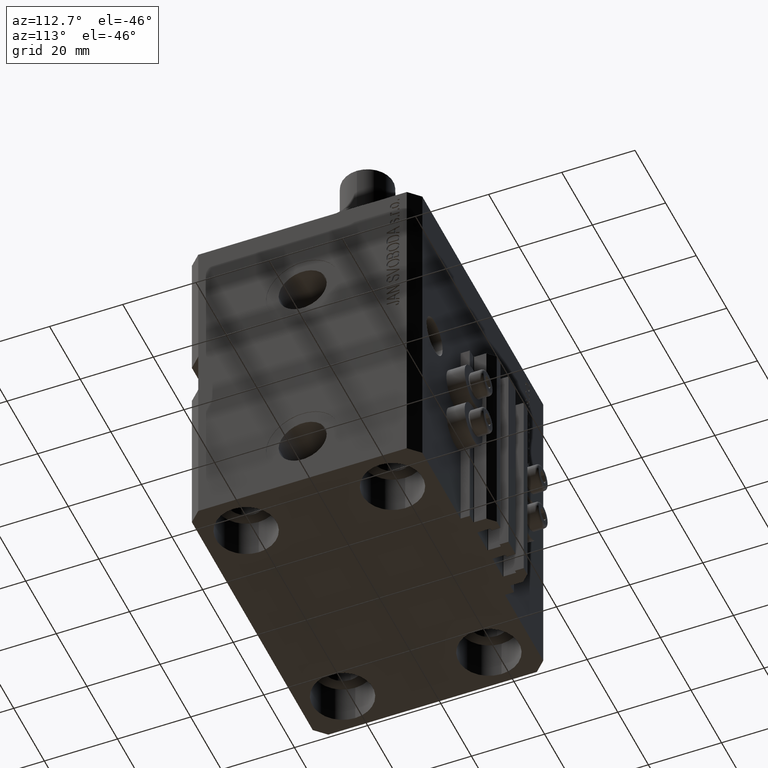
[diagram: clean part render]
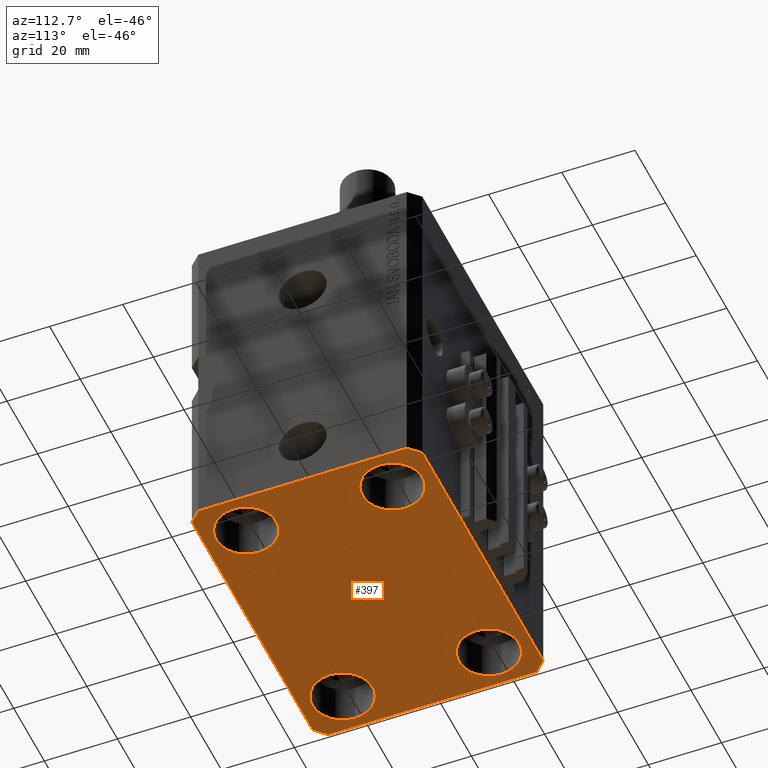
[diagram: same view with one face highlighted and labeled with its STEP entity id]
A machine part, auxiliary view. The second image highlights one B-rep face of the part: STEP entity #397.
In plain terms, the highlighted planar face has unit normal (0, 0, 1).
Its self-contained STEP definition (entity closure, byte-faithful):
#308 = CARTESIAN_POINT ( 'NONE',  ( -31.50000000000000000, -20.00000000000000000, -93.00000000000000000 ) ) ;
#341 = CARTESIAN_POINT ( 'NONE',  ( -39.50000000000000711, -31.50000000000000000, -93.00000000000000000 ) ) ;
#366 = CARTESIAN_POINT ( 'NONE',  ( 39.50000000000056843, 31.50000000000000000, -93.00000000000000000 ) ) ;
#397 = ADVANCED_FACE ( 'NONE', ( #9981, #2274, #21641, #6262, #14430 ), #17423, .F. ) ;
#473 = CARTESIAN_POINT ( 'NONE',  ( -39.75000000000000000, -20.00000000000000000, -93.00000000000000000 ) ) ;
#772 = ORIENTED_EDGE ( 'NONE', *, *, #30336, .T. ) ;
#888 = DIRECTION ( 'NONE',  ( 1.000000000000000000, 0.000000000000000000, 0.000000000000000000 ) ) ;
#1151 = CARTESIAN_POINT ( 'NONE',  ( -39.50000000000000711, 31.50000000000000000, -93.00000000000000000 ) ) ;
#1589 = ORIENTED_EDGE ( 'NONE', *, *, #12953, .T. ) ;
#1649 = VERTEX_POINT ( 'NONE', #39959 ) ;
#1673 = DIRECTION ( 'NONE',  ( 0.000000000000000000, -1.000000000000000000, 0.000000000000000000 ) ) ;
#2274 = FACE_BOUND ( 'NONE', #24689, .T. ) ;
#2641 = EDGE_CURVE ( 'NONE', #32670, #44486, #13923, .T. ) ;
#2799 = AXIS2_PLACEMENT_3D ( 'NONE', #17500, #13526, #32687 ) ;
#3371 = ORIENTED_EDGE ( 'NONE', *, *, #2641, .F. ) ;
#3550 = DIRECTION ( 'NONE',  ( 1.000000000000000000, 0.000000000000000000, 0.000000000000000000 ) ) ;
#3605 = DIRECTION ( 'NONE',  ( 0.7071067811865471286, -0.7071067811865479058, 0.000000000000000000 ) ) ;
#3819 = CARTESIAN_POINT ( 'NONE',  ( -23.25000000000000000, 20.00000000000000000, -93.00000000000000000 ) ) ;
#4004 = CARTESIAN_POINT ( 'NONE',  ( -42.50000000000000000, 28.50000000000000000, -93.00000000000000000 ) ) ;
#4154 = CIRCLE ( 'NONE', #28750, 8.250000000000000000 ) ;
#4473 = CIRCLE ( 'NONE', #44185, 8.249999999999992895 ) ;
#4543 = CIRCLE ( 'NONE', #10110, 8.250000000000000000 ) ;
#4635 = CARTESIAN_POINT ( 'NONE',  ( 31.50000000000000000, 20.00000000000001066, -93.00000000000000000 ) ) ;
#4725 = CARTESIAN_POINT ( 'NONE',  ( 39.74999999999999289, -20.00000000000000000, -93.00000000000000000 ) ) ;
#5233 = EDGE_CURVE ( 'NONE', #44486, #42988, #12548, .T. ) ;
#5979 = CARTESIAN_POINT ( 'NONE',  ( -39.75000000000000000, 20.00000000000000000, -93.00000000000000000 ) ) ;
#5986 = CARTESIAN_POINT ( 'NONE',  ( -39.50000000000000711, -31.50000000000000000, -93.00000000000000000 ) ) ;
#6262 = FACE_BOUND ( 'NONE', #6630, .T. ) ;
#6630 = EDGE_LOOP ( 'NONE', ( #772, #1589 ) ) ;
#6784 = CIRCLE ( 'NONE', #9926, 8.249999999999992895 ) ;
#7747 = LINE ( 'NONE', #22644, #37705 ) ;
#8054 = DIRECTION ( 'NONE',  ( -0.000000000000000000, -0.000000000000000000, 1.000000000000000000 ) ) ;
#8227 = DIRECTION ( 'NONE',  ( 1.000000000000000000, 0.000000000000000000, 0.000000000000000000 ) ) ;
#8345 = DIRECTION ( 'NONE',  ( -0.000000000000000000, -0.000000000000000000, 1.000000000000000000 ) ) ;
#8397 = ORIENTED_EDGE ( 'NONE', *, *, #22074, .T. ) ;
#8544 = EDGE_CURVE ( 'NONE', #1649, #32670, #25070, .T. ) ;
#9926 = AXIS2_PLACEMENT_3D ( 'NONE', #42313, #34836, #8227 ) ;
#9981 = FACE_BOUND ( 'NONE', #35796, .T. ) ;
#10019 = VECTOR ( 'NONE', #20235, 1000.000000000000000 ) ;
#10110 = AXIS2_PLACEMENT_3D ( 'NONE', #36704, #33960, #22241 ) ;
#10183 = EDGE_CURVE ( 'NONE', #18681, #14613, #12083, .T. ) ;
#11753 = VERTEX_POINT ( 'NONE', #33834 ) ;
#12083 = LINE ( 'NONE', #1151, #26744 ) ;
#12387 = CARTESIAN_POINT ( 'NONE',  ( 39.74999999999999289, 20.00000000000001066, -93.00000000000000000 ) ) ;
#12410 = CIRCLE ( 'NONE', #39414, 8.250000000000000000 ) ;
#12481 = VERTEX_POINT ( 'NONE', #4725 ) ;
#12548 = LINE ( 'NONE', #27726, #10019 ) ;
#12953 = EDGE_CURVE ( 'NONE', #22192, #15288, #25530, .T. ) ;
#13335 = ORIENTED_EDGE ( 'NONE', *, *, #17454, .T. ) ;
#13526 = DIRECTION ( 'NONE',  ( -0.000000000000000000, -0.000000000000000000, 1.000000000000000000 ) ) ;
#13688 = DIRECTION ( 'NONE',  ( 0.000000000000000000, 0.000000000000000000, 1.000000000000000000 ) ) ;
#13923 = LINE ( 'NONE', #5986, #25031 ) ;
#14305 = ORIENTED_EDGE ( 'NONE', *, *, #29935, .F. ) ;
#14430 = FACE_OUTER_BOUND ( 'NONE', #17607, .T. ) ;
#14613 = VERTEX_POINT ( 'NONE', #4004 ) ;
#15213 = VERTEX_POINT ( 'NONE', #22900 ) ;
#15288 = VERTEX_POINT ( 'NONE', #5979 ) ;
#16327 = ORIENTED_EDGE ( 'NONE', *, *, #28471, .T. ) ;
#16461 = LINE ( 'NONE', #39109, #28171 ) ;
#16674 = CARTESIAN_POINT ( 'NONE',  ( 23.25000000000000355, 20.00000000000001066, -93.00000000000000000 ) ) ;
#16872 = ORIENTED_EDGE ( 'NONE', *, *, #30011, .T. ) ;
#17423 = PLANE ( 'NONE',  #25710 ) ;
#17454 = EDGE_CURVE ( 'NONE', #15213, #39845, #4154, .T. ) ;
#17498 = VERTEX_POINT ( 'NONE', #16674 ) ;
#17500 = CARTESIAN_POINT ( 'NONE',  ( 31.50000000000000000, -20.00000000000000000, -93.00000000000000000 ) ) ;
#17607 = EDGE_LOOP ( 'NONE', ( #36073, #43647, #14305, #41099, #3371, #19252, #36662, #39679 ) ) ;
#18647 = CIRCLE ( 'NONE', #2799, 8.249999999999992895 ) ;
#18681 = VERTEX_POINT ( 'NONE', #44251 ) ;
#19252 = ORIENTED_EDGE ( 'NONE', *, *, #8544, .F. ) ;
#20009 = DIRECTION ( 'NONE',  ( -0.7071067811865471286, -0.7071067811865479058, 0.000000000000000000 ) ) ;
#20235 = DIRECTION ( 'NONE',  ( 0.7071067811865483499, 0.7071067811865466846, 0.000000000000000000 ) ) ;
#21394 = DIRECTION ( 'NONE',  ( 1.000000000000000000, 0.000000000000000000, -0.000000000000000000 ) ) ;
#21641 = FACE_BOUND ( 'NONE', #31088, .T. ) ;
#21739 = AXIS2_PLACEMENT_3D ( 'NONE', #36428, #31936, #47139 ) ;
#22074 = EDGE_CURVE ( 'NONE', #11753, #12481, #39230, .T. ) ;
#22192 = VERTEX_POINT ( 'NONE', #3819 ) ;
#22241 = DIRECTION ( 'NONE',  ( 1.000000000000000000, 0.000000000000000000, 0.000000000000000000 ) ) ;
#22623 = EDGE_CURVE ( 'NONE', #14613, #1649, #7747, .T. ) ;
#22644 = CARTESIAN_POINT ( 'NONE',  ( -42.50000000000000000, 28.50000000000000000, -93.00000000000000000 ) ) ;
#22787 = CARTESIAN_POINT ( 'NONE',  ( 39.50000000000056843, 31.50000000000000000, -93.00000000000000000 ) ) ;
#22900 = CARTESIAN_POINT ( 'NONE',  ( -23.25000000000000000, -20.00000000000000000, -93.00000000000000000 ) ) ;
#24003 = CARTESIAN_POINT ( 'NONE',  ( 39.50000000000000711, -31.50000000000000000, -93.00000000000000000 ) ) ;
#24689 = EDGE_LOOP ( 'NONE', ( #8397, #16327 ) ) ;
#25031 = VECTOR ( 'NONE', #44540, 1000.000000000000000 ) ;
#25070 = LINE ( 'NONE', #33033, #45869 ) ;
#25530 = CIRCLE ( 'NONE', #31862, 8.250000000000000000 ) ;
#25710 = AXIS2_PLACEMENT_3D ( 'NONE', #32607, #13688, #21394 ) ;
#26744 = VECTOR ( 'NONE', #20009, 1000.000000000000000 ) ;
#26919 = DIRECTION ( 'NONE',  ( -0.000000000000000000, -0.000000000000000000, 1.000000000000000000 ) ) ;
#27052 = EDGE_CURVE ( 'NONE', #31186, #31432, #16461, .T. ) ;
#27726 = CARTESIAN_POINT ( 'NONE',  ( 39.50000000000000711, -31.50000000000000000, -93.00000000000000000 ) ) ;
#28171 = VECTOR ( 'NONE', #39358, 1000.000000000000114 ) ;
#28187 = EDGE_CURVE ( 'NONE', #17498, #39962, #6784, .T. ) ;
#28471 = EDGE_CURVE ( 'NONE', #12481, #11753, #18647, .T. ) ;
#28750 = AXIS2_PLACEMENT_3D ( 'NONE', #308, #26919, #3550 ) ;
#29253 = ORIENTED_EDGE ( 'NONE', *, *, #28187, .T. ) ;
#29935 = EDGE_CURVE ( 'NONE', #42988, #31186, #32517, .T. ) ;
#30011 = EDGE_CURVE ( 'NONE', #39962, #17498, #4473, .T. ) ;
#30336 = EDGE_CURVE ( 'NONE', #15288, #22192, #12410, .T. ) ;
#30687 = CARTESIAN_POINT ( 'NONE',  ( -31.50000000000000000, 20.00000000000000000, -93.00000000000000000 ) ) ;
#31088 = EDGE_LOOP ( 'NONE', ( #29253, #16872 ) ) ;
#31186 = VERTEX_POINT ( 'NONE', #31965 ) ;
#31432 = VERTEX_POINT ( 'NONE', #366 ) ;
#31862 = AXIS2_PLACEMENT_3D ( 'NONE', #38437, #8345, #34707 ) ;
#31936 = DIRECTION ( 'NONE',  ( -0.000000000000000000, -0.000000000000000000, 1.000000000000000000 ) ) ;
#31965 = CARTESIAN_POINT ( 'NONE',  ( 42.50000000000051870, 28.49999999999995381, -93.00000000000000000 ) ) ;
#32001 = EDGE_CURVE ( 'NONE', #39845, #15213, #4543, .T. ) ;
#32046 = VECTOR ( 'NONE', #37477, 1000.000000000000000 ) ;
#32517 = LINE ( 'NONE', #46731, #37808 ) ;
#32607 = CARTESIAN_POINT ( 'NONE',  ( 0.000000000000000000, 0.000000000000000000, -93.00000000000000000 ) ) ;
#32670 = VERTEX_POINT ( 'NONE', #341 ) ;
#32687 = DIRECTION ( 'NONE',  ( 1.000000000000000000, 0.000000000000000000, 0.000000000000000000 ) ) ;
#33033 = CARTESIAN_POINT ( 'NONE',  ( -42.50000000000000000, -28.50000000000000000, -93.00000000000000000 ) ) ;
#33834 = CARTESIAN_POINT ( 'NONE',  ( 23.25000000000000355, -20.00000000000000000, -93.00000000000000000 ) ) ;
#33960 = DIRECTION ( 'NONE',  ( -0.000000000000000000, -0.000000000000000000, 1.000000000000000000 ) ) ;
#34707 = DIRECTION ( 'NONE',  ( 1.000000000000000000, 0.000000000000000000, 0.000000000000000000 ) ) ;
#34836 = DIRECTION ( 'NONE',  ( -0.000000000000000000, -0.000000000000000000, 1.000000000000000000 ) ) ;
#35796 = EDGE_LOOP ( 'NONE', ( #44207, #13335 ) ) ;
#36073 = ORIENTED_EDGE ( 'NONE', *, *, #44440, .F. ) ;
#36428 = CARTESIAN_POINT ( 'NONE',  ( 31.50000000000000000, -20.00000000000000000, -93.00000000000000000 ) ) ;
#36662 = ORIENTED_EDGE ( 'NONE', *, *, #22623, .F. ) ;
#36704 = CARTESIAN_POINT ( 'NONE',  ( -31.50000000000000000, -20.00000000000000000, -93.00000000000000000 ) ) ;
#37477 = DIRECTION ( 'NONE',  ( -1.000000000000000000, 0.000000000000000000, 0.000000000000000000 ) ) ;
#37705 = VECTOR ( 'NONE', #1673, 1000.000000000000000 ) ;
#37808 = VECTOR ( 'NONE', #47700, 1000.000000000000000 ) ;
#38437 = CARTESIAN_POINT ( 'NONE',  ( -31.50000000000000000, 20.00000000000000000, -93.00000000000000000 ) ) ;
#39109 = CARTESIAN_POINT ( 'NONE',  ( 42.50000000000051870, 28.49999999999995381, -93.00000000000000000 ) ) ;
#39230 = CIRCLE ( 'NONE', #21739, 8.249999999999992895 ) ;
#39358 = DIRECTION ( 'NONE',  ( -0.7071067811865356934, 0.7071067811865594521, 0.000000000000000000 ) ) ;
#39414 = AXIS2_PLACEMENT_3D ( 'NONE', #30687, #8054, #45380 ) ;
#39679 = ORIENTED_EDGE ( 'NONE', *, *, #10183, .F. ) ;
#39845 = VERTEX_POINT ( 'NONE', #473 ) ;
#39959 = CARTESIAN_POINT ( 'NONE',  ( -42.50000000000000000, -28.50000000000000000, -93.00000000000000000 ) ) ;
#39962 = VERTEX_POINT ( 'NONE', #12387 ) ;
#41099 = ORIENTED_EDGE ( 'NONE', *, *, #5233, .F. ) ;
#42313 = CARTESIAN_POINT ( 'NONE',  ( 31.50000000000000000, 20.00000000000001066, -93.00000000000000000 ) ) ;
#42988 = VERTEX_POINT ( 'NONE', #44481 ) ;
#43647 = ORIENTED_EDGE ( 'NONE', *, *, #27052, .F. ) ;
#44185 = AXIS2_PLACEMENT_3D ( 'NONE', #4635, #45698, #888 ) ;
#44207 = ORIENTED_EDGE ( 'NONE', *, *, #32001, .T. ) ;
#44251 = CARTESIAN_POINT ( 'NONE',  ( -39.50000000000000711, 31.50000000000000000, -93.00000000000000000 ) ) ;
#44440 = EDGE_CURVE ( 'NONE', #31432, #18681, #49176, .T. ) ;
#44481 = CARTESIAN_POINT ( 'NONE',  ( 42.50000000000000711, -28.50000000000000355, -93.00000000000000000 ) ) ;
#44486 = VERTEX_POINT ( 'NONE', #24003 ) ;
#44540 = DIRECTION ( 'NONE',  ( 1.000000000000000000, 0.000000000000000000, 0.000000000000000000 ) ) ;
#45380 = DIRECTION ( 'NONE',  ( 1.000000000000000000, 0.000000000000000000, 0.000000000000000000 ) ) ;
#45698 = DIRECTION ( 'NONE',  ( -0.000000000000000000, -0.000000000000000000, 1.000000000000000000 ) ) ;
#45869 = VECTOR ( 'NONE', #3605, 1000.000000000000000 ) ;
#46731 = CARTESIAN_POINT ( 'NONE',  ( 42.50000000000000711, -28.50000000000000355, -93.00000000000000000 ) ) ;
#47139 = DIRECTION ( 'NONE',  ( 1.000000000000000000, 0.000000000000000000, 0.000000000000000000 ) ) ;
#47700 = DIRECTION ( 'NONE',  ( 8.886653596232072440E-15, 1.000000000000000000, 0.000000000000000000 ) ) ;
#49176 = LINE ( 'NONE', #22787, #32046 ) ;